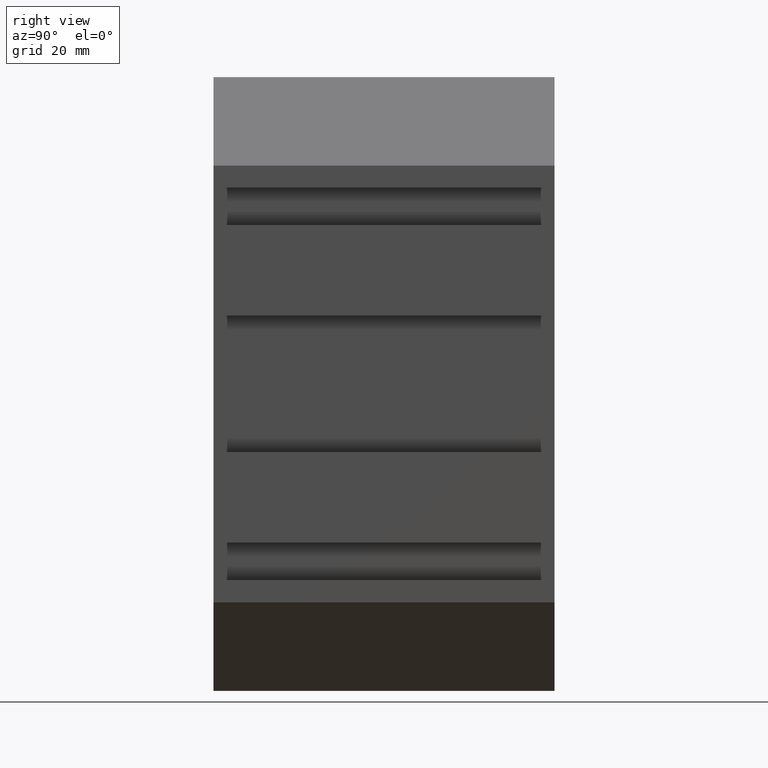
[diagram: clean part render]
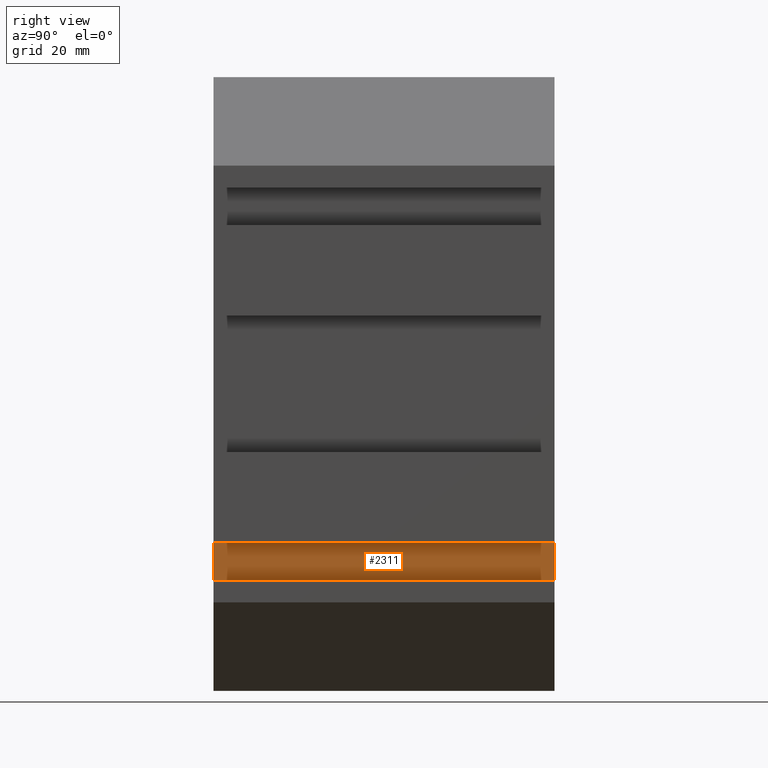
[diagram: same view with one face highlighted and labeled with its STEP entity id]
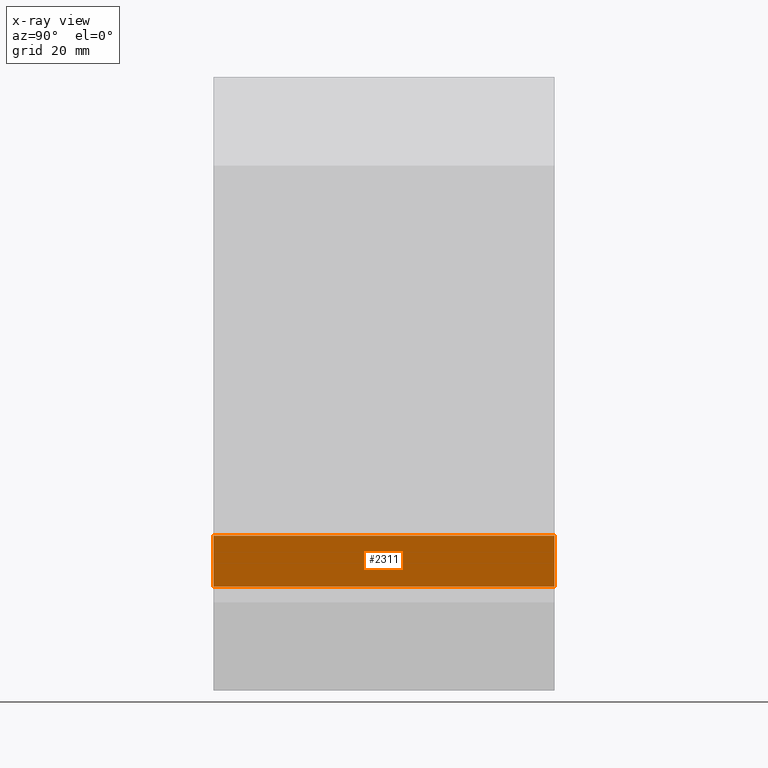
[diagram: x-ray of the same camera — body ghosted, the highlighted face saturated]
A machine part, right view. The second image highlights one B-rep face of the part: STEP entity #2311.
The next image is the same camera in x-ray: the body ghosted, the highlighted face saturated — about 0% of this face is hidden behind the body in this view.
In plain terms, the highlighted planar face has unit normal (-1, 0, 0).
Its self-contained STEP definition (entity closure, byte-faithful):
#37=PLANE('',#2464);
#123=FACE_OUTER_BOUND('',#241,.T.);
#241=EDGE_LOOP('',(#1607,#1608,#1609,#1610));
#383=LINE('',#3355,#655);
#389=LINE('',#3373,#661);
#390=LINE('',#3375,#662);
#391=LINE('',#3376,#663);
#655=VECTOR('',#2688,10.);
#661=VECTOR('',#2704,10.);
#662=VECTOR('',#2707,10.);
#663=VECTOR('',#2708,10.);
#1007=VERTEX_POINT('',#3351);
#1009=VERTEX_POINT('',#3354);
#1014=VERTEX_POINT('',#3367);
#1016=VERTEX_POINT('',#3371);
#1244=EDGE_CURVE('',#1009,#1007,#383,.T.);
#1253=EDGE_CURVE('',#1014,#1016,#389,.T.);
#1254=EDGE_CURVE('',#1007,#1014,#390,.T.);
#1255=EDGE_CURVE('',#1016,#1009,#391,.T.);
#1607=ORIENTED_EDGE('',*,*,#1244,.T.);
#1608=ORIENTED_EDGE('',*,*,#1254,.T.);
#1609=ORIENTED_EDGE('',*,*,#1253,.T.);
#1610=ORIENTED_EDGE('',*,*,#1255,.T.);
#2311=ADVANCED_FACE('',(#123),#37,.F.);
#2464=AXIS2_PLACEMENT_3D('',#3374,#2705,#2706);
#2688=DIRECTION('',(0.,-1.,0.));
#2704=DIRECTION('',(0.,1.,0.));
#2705=DIRECTION('center_axis',(-1.,0.,6.47816645295838E-15));
#2706=DIRECTION('ref_axis',(6.47816645295838E-15,0.,1.));
#2707=DIRECTION('',(-6.47816645295838E-15,0.,-1.));
#2708=DIRECTION('',(6.47816645295838E-15,0.,1.));
#3351=CARTESIAN_POINT('',(19.9999999999997,0.,-44.5000000000003));
#3354=CARTESIAN_POINT('',(19.9999999999997,100.,-44.5000000000003));
#3355=CARTESIAN_POINT('',(19.9999999999997,0.,-44.5000000000003));
#3367=CARTESIAN_POINT('',(19.9999999999996,0.,-59.5000000000003));
#3371=CARTESIAN_POINT('',(19.9999999999996,100.,-59.5000000000003));
#3373=CARTESIAN_POINT('',(19.9999999999996,0.,-59.5000000000003));
#3374=CARTESIAN_POINT('Origin',(19.9999999999996,0.,-61.0000000000003));
#3375=CARTESIAN_POINT('',(19.9999999999997,0.,-43.0000000000003));
#3376=CARTESIAN_POINT('',(19.9999999999997,100.,-43.0000000000003));